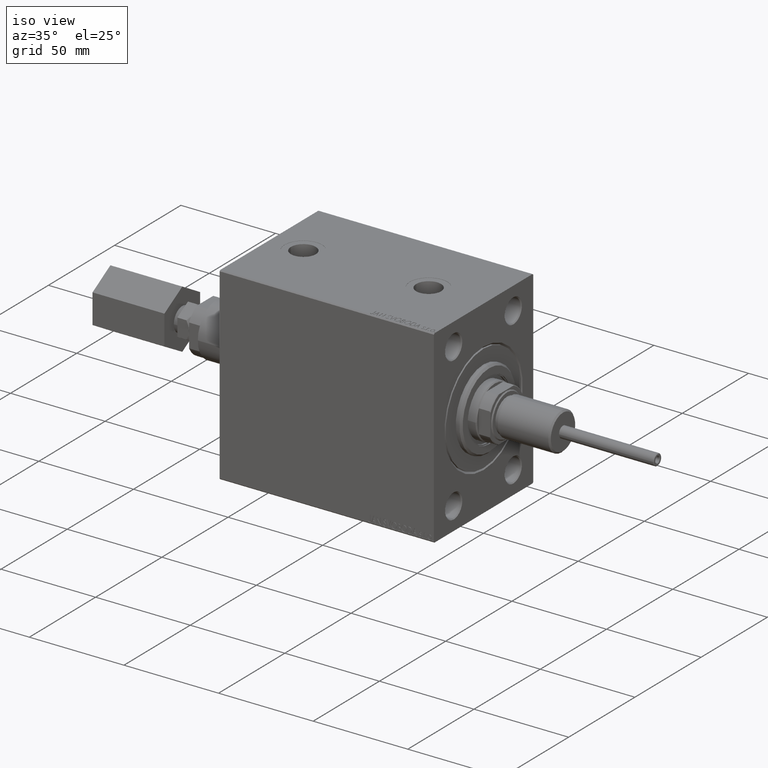
[diagram: clean part render]
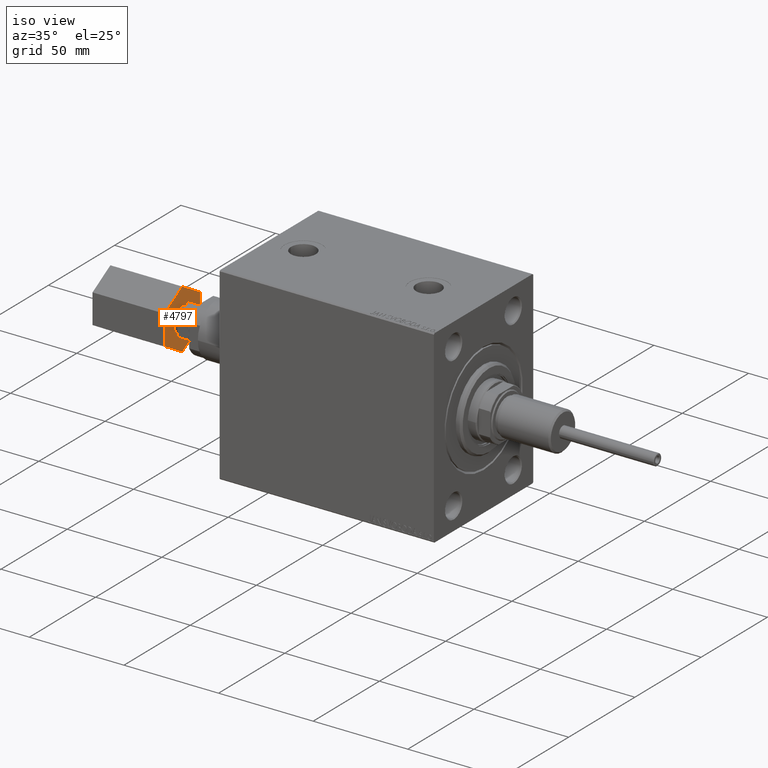
[diagram: same view with one face highlighted and labeled with its STEP entity id]
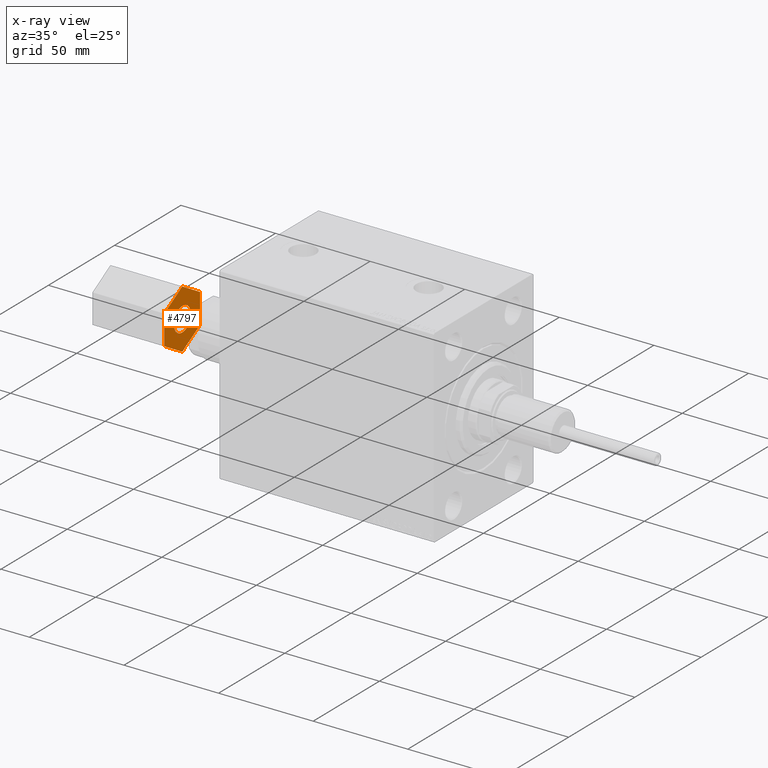
[diagram: x-ray of the same camera — body ghosted, the highlighted face saturated]
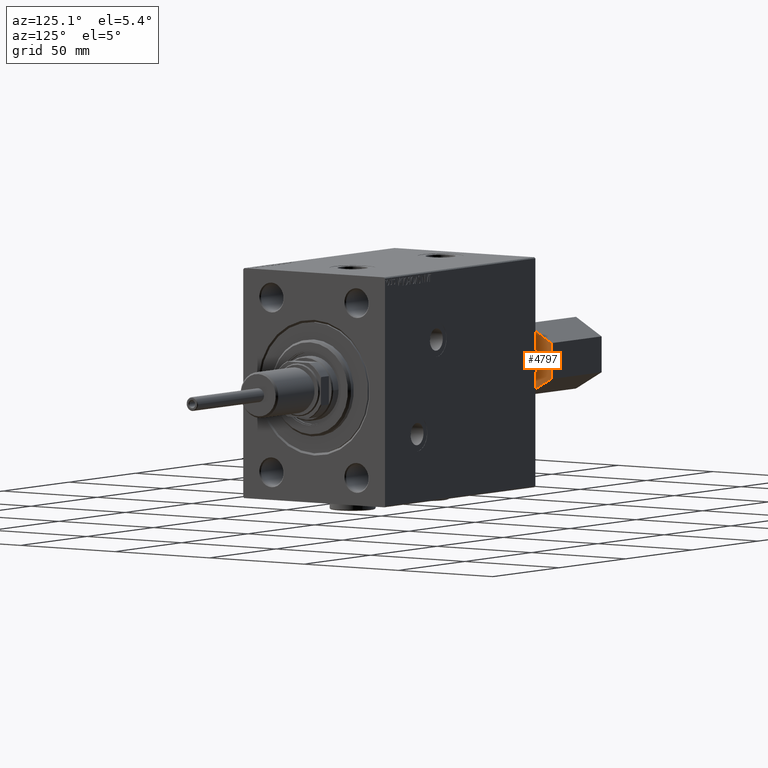
[diagram: same view with one face highlighted and labeled with its STEP entity id]
A machine part, iso view. The second image highlights one B-rep face of the part: STEP entity #4797.
The next image is the same camera in x-ray: the body ghosted, the highlighted face saturated — about 1% of this face is hidden behind the body in this view.
A second angle (auxiliary view) of the same face is appended — the face is thin or edge-on in the first view.
In plain terms, the highlighted planar face has unit normal (-1, 0, 0).
Its self-contained STEP definition (entity closure, byte-faithful):
#12 = CARTESIAN_POINT ( 'NONE',  ( 46.00000000000000711, 0.000000000000000000, 0.000000000000000000 ) ) ;
#658 = DIRECTION ( 'NONE',  ( 0.000000000000000000, 1.000000000000000000, 2.225651257388383239E-16 ) ) ;
#1313 = ORIENTED_EDGE ( 'NONE', *, *, #1537, .T. ) ;
#1537 = EDGE_CURVE ( 'NONE', #27594, #31079, #32775, .T. ) ;
#3476 = FACE_OUTER_BOUND ( 'NONE', #42484, .T. ) ;
#3579 = EDGE_CURVE ( 'NONE', #34865, #48035, #42935, .T. ) ;
#3706 = FACE_BOUND ( 'NONE', #32749, .T. ) ;
#4448 = VERTEX_POINT ( 'NONE', #27647 ) ;
#4797 = ADVANCED_FACE ( 'NONE', ( #3706, #3476 ), #18744, .F. ) ;
#5326 = AXIS2_PLACEMENT_3D ( 'NONE', #12, #45125, #18991 ) ;
#6182 = ORIENTED_EDGE ( 'NONE', *, *, #27486, .F. ) ;
#6340 = DIRECTION ( 'NONE',  ( 0.000000000000000000, 0.000000000000000000, -1.000000000000000000 ) ) ;
#9123 = AXIS2_PLACEMENT_3D ( 'NONE', #30867, #42441, #12137 ) ;
#10784 = CARTESIAN_POINT ( 'NONE',  ( 46.00000000000000711, 7.794228634059951588, 13.50000000000000000 ) ) ;
#10924 = CARTESIAN_POINT ( 'NONE',  ( 46.00000000000000711, 15.58845726811989252, 0.000000000000000000 ) ) ;
#11089 = EDGE_CURVE ( 'NONE', #4448, #15363, #45916, .T. ) ;
#12137 = DIRECTION ( 'NONE',  ( 0.000000000000000000, 0.000000000000000000, -1.000000000000000000 ) ) ;
#12169 = DIRECTION ( 'NONE',  ( 0.000000000000000000, -0.4999999999999997780, -0.8660254037844387076 ) ) ;
#13134 = VECTOR ( 'NONE', #39963, 1000.000000000000000 ) ;
#13340 = CARTESIAN_POINT ( 'NONE',  ( 46.00000000000000711, 7.825493046551585197E-16, -6.389999999999998792 ) ) ;
#14281 = LINE ( 'NONE', #14756, #26079 ) ;
#14326 = EDGE_CURVE ( 'NONE', #48035, #33032, #42469, .T. ) ;
#14336 = ORIENTED_EDGE ( 'NONE', *, *, #14326, .F. ) ;
#14553 = ORIENTED_EDGE ( 'NONE', *, *, #11089, .F. ) ;
#14724 = LINE ( 'NONE', #19389, #14904 ) ;
#14756 = CARTESIAN_POINT ( 'NONE',  ( 46.00000000000000711, -15.58845726811989607, -5.983477626642369342E-15 ) ) ;
#14904 = VECTOR ( 'NONE', #658, 1000.000000000000000 ) ;
#15068 = CARTESIAN_POINT ( 'NONE',  ( 46.00000000000000711, -7.794228634059953364, -13.50000000000000178 ) ) ;
#15363 = VERTEX_POINT ( 'NONE', #25024 ) ;
#16368 = CIRCLE ( 'NONE', #36049, 6.389999999999998792 ) ;
#17071 = VERTEX_POINT ( 'NONE', #15068 ) ;
#18744 = PLANE ( 'NONE',  #5326 ) ;
#18991 = DIRECTION ( 'NONE',  ( 0.000000000000000000, 0.000000000000000000, -1.000000000000000000 ) ) ;
#19050 = DIRECTION ( 'NONE',  ( 0.000000000000000000, 0.4999999999999996669, 0.8660254037844388186 ) ) ;
#19389 = CARTESIAN_POINT ( 'NONE',  ( 46.00000000000000711, -7.794228634059953364, -13.50000000000000178 ) ) ;
#19716 = EDGE_CURVE ( 'NONE', #31079, #27594, #16368, .T. ) ;
#21003 = CARTESIAN_POINT ( 'NONE',  ( 46.00000000000000711, 7.794228634059951588, 13.50000000000000000 ) ) ;
#21172 = VECTOR ( 'NONE', #19050, 1000.000000000000114 ) ;
#23538 = EDGE_CURVE ( 'NONE', #17071, #4448, #14724, .T. ) ;
#25024 = CARTESIAN_POINT ( 'NONE',  ( 46.00000000000000711, 15.58845726811989252, 0.000000000000000000 ) ) ;
#25952 = DIRECTION ( 'NONE',  ( 0.000000000000000000, -0.4999999999999996669, 0.8660254037844388186 ) ) ;
#26079 = VECTOR ( 'NONE', #29786, 1000.000000000000114 ) ;
#26917 = ORIENTED_EDGE ( 'NONE', *, *, #23538, .F. ) ;
#26921 = CARTESIAN_POINT ( 'NONE',  ( 46.00000000000000711, 7.794228634059952476, -13.49999999999999822 ) ) ;
#27486 = EDGE_CURVE ( 'NONE', #15363, #34865, #44685, .T. ) ;
#27594 = VERTEX_POINT ( 'NONE', #13340 ) ;
#27647 = CARTESIAN_POINT ( 'NONE',  ( 46.00000000000000711, 7.794228634059952476, -13.49999999999999822 ) ) ;
#28519 = CARTESIAN_POINT ( 'NONE',  ( 46.00000000000000711, 0.000000000000000000, 0.000000000000000000 ) ) ;
#29786 = DIRECTION ( 'NONE',  ( 0.000000000000000000, 0.4999999999999998335, -0.8660254037844387076 ) ) ;
#30812 = ORIENTED_EDGE ( 'NONE', *, *, #3579, .F. ) ;
#30867 = CARTESIAN_POINT ( 'NONE',  ( 46.00000000000000711, 0.000000000000000000, 0.000000000000000000 ) ) ;
#31079 = VERTEX_POINT ( 'NONE', #46776 ) ;
#31727 = EDGE_CURVE ( 'NONE', #33032, #17071, #14281, .T. ) ;
#32495 = ORIENTED_EDGE ( 'NONE', *, *, #31727, .F. ) ;
#32749 = EDGE_LOOP ( 'NONE', ( #35876, #1313 ) ) ;
#32775 = CIRCLE ( 'NONE', #9123, 6.389999999999998792 ) ;
#33032 = VERTEX_POINT ( 'NONE', #33603 ) ;
#33603 = CARTESIAN_POINT ( 'NONE',  ( 46.00000000000000711, -15.58845726811989607, -5.983477626642369342E-15 ) ) ;
#34865 = VERTEX_POINT ( 'NONE', #10784 ) ;
#35876 = ORIENTED_EDGE ( 'NONE', *, *, #19716, .T. ) ;
#36049 = AXIS2_PLACEMENT_3D ( 'NONE', #28519, #40345, #6340 ) ;
#37113 = VECTOR ( 'NONE', #25952, 1000.000000000000000 ) ;
#38286 = CARTESIAN_POINT ( 'NONE',  ( 46.00000000000000711, -7.794228634059949812, 13.49999999999999822 ) ) ;
#39963 = DIRECTION ( 'NONE',  ( 0.000000000000000000, -1.000000000000000000, -1.112825628694191866E-16 ) ) ;
#40345 = DIRECTION ( 'NONE',  ( 1.000000000000000000, 0.000000000000000000, 0.000000000000000000 ) ) ;
#42441 = DIRECTION ( 'NONE',  ( 1.000000000000000000, 0.000000000000000000, 0.000000000000000000 ) ) ;
#42469 = LINE ( 'NONE', #38286, #47010 ) ;
#42484 = EDGE_LOOP ( 'NONE', ( #26917, #32495, #14336, #30812, #6182, #14553 ) ) ;
#42935 = LINE ( 'NONE', #21003, #13134 ) ;
#44269 = CARTESIAN_POINT ( 'NONE',  ( 46.00000000000000711, -7.794228634059949812, 13.49999999999999822 ) ) ;
#44685 = LINE ( 'NONE', #10924, #37113 ) ;
#45125 = DIRECTION ( 'NONE',  ( 1.000000000000000000, 0.000000000000000000, 0.000000000000000000 ) ) ;
#45916 = LINE ( 'NONE', #26921, #21172 ) ;
#46776 = CARTESIAN_POINT ( 'NONE',  ( 46.00000000000000711, 0.000000000000000000, 6.389999999999998792 ) ) ;
#47010 = VECTOR ( 'NONE', #12169, 1000.000000000000227 ) ;
#48035 = VERTEX_POINT ( 'NONE', #44269 ) ;